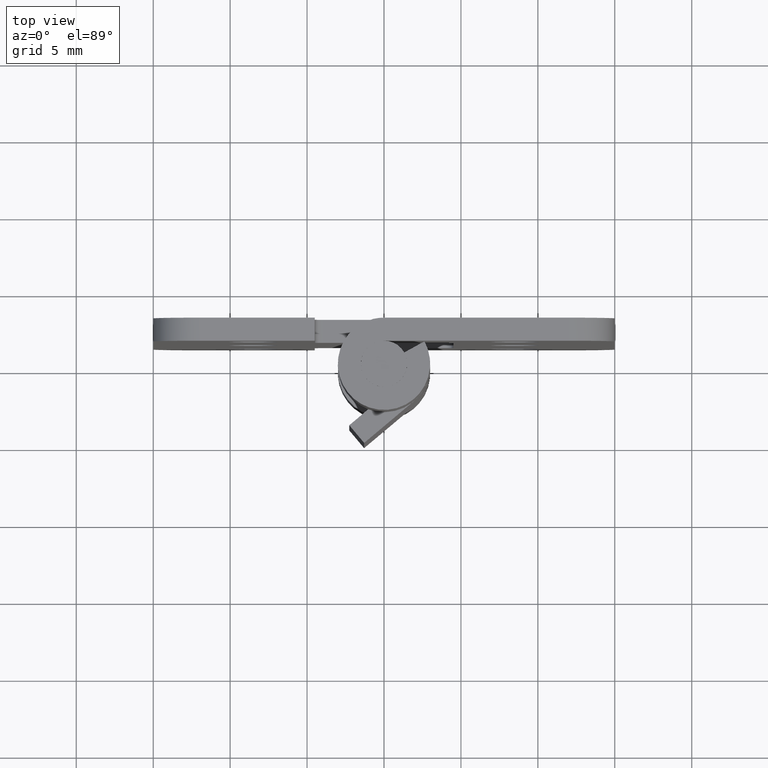
[diagram: clean part render]
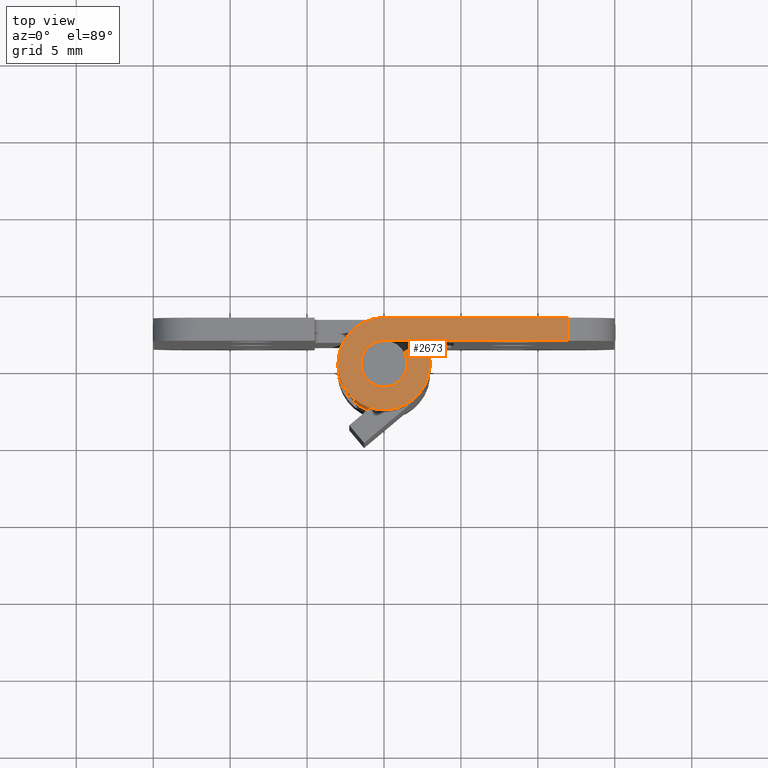
[diagram: same view with one face highlighted and labeled with its STEP entity id]
A machine part, top view. The second image highlights one B-rep face of the part: STEP entity #2673.
In plain terms, the highlighted face is a freeform B-spline surface patch.
Its self-contained STEP definition (entity closure, byte-faithful):
#2266=CARTESIAN_POINT('',(12.000006999999901,3.0,35.999993000000003));
#2267=VERTEX_POINT('',#2266);
#2283=CARTESIAN_POINT('',(12.000006999999901,1.500000000000000,35.999993000000003));
#2284=VERTEX_POINT('',#2283);
#2285=CARTESIAN_POINT('',(12.000006999999901,1.500000000000000,35.999993000000003));
#2286=CARTESIAN_POINT('',(12.000006999999901,3.0,35.999993000000003));
#2287=QUASI_UNIFORM_CURVE('',1,(#2285,#2286),.UNSPECIFIED.,.F.,.U.);
#2288=EDGE_CURVE('',#2284,#2267,#2287,.T.);
#2604=CARTESIAN_POINT('',(-3.749198550784993,-3.299492218642588,35.999993000000003));
#2605=CARTESIAN_POINT('',(12.749254136105570,-3.299492218642588,35.999993000000003));
#2606=CARTESIAN_POINT('',(-3.749198550784993,3.299690264924963,35.999993000000003));
#2607=CARTESIAN_POINT('',(12.749254136105570,3.299690264924963,35.999993000000003));
#2608=B_SPLINE_SURFACE_WITH_KNOTS('',1,1,((#2604,#2606),(#2605,#2607)),.UNSPECIFIED.,.F.,.F.,.U.,(2,2),(2,2),(0.0,16.498452686890559),(0.0,6.599182483567550),.UNSPECIFIED.);
#2609=CARTESIAN_POINT('',(0.0,1.500000000000000,35.999993000000003));
#2610=VERTEX_POINT('',#2609);
#2611=CARTESIAN_POINT('',(12.000006999999901,1.500000000000000,35.999993000000003));
#2612=CARTESIAN_POINT('',(0.0,1.500000000000000,35.999993000000003));
#2613=QUASI_UNIFORM_CURVE('',1,(#2611,#2612),.UNSPECIFIED.,.F.,.U.);
#2614=EDGE_CURVE('',#2284,#2610,#2613,.T.);
#2615=ORIENTED_EDGE('',*,*,#2614,.F.);
#2616=ORIENTED_EDGE('',*,*,#2288,.T.);
#2617=CARTESIAN_POINT('',(0.0,3.0,35.999993000000003));
#2618=VERTEX_POINT('',#2617);
#2619=CARTESIAN_POINT('',(0.0,3.0,35.999993000000003));
#2620=CARTESIAN_POINT('',(12.000006999999901,3.0,35.999993000000003));
#2621=QUASI_UNIFORM_CURVE('',1,(#2619,#2620),.UNSPECIFIED.,.F.,.U.);
#2622=EDGE_CURVE('',#2618,#2267,#2621,.T.);
#2623=ORIENTED_EDGE('',*,*,#2622,.F.);
#2624=CARTESIAN_POINT('',(2.626309197333780,1.450000000000000,35.999993000000003));
#2625=VERTEX_POINT('',#2624);
#2626=CARTESIAN_POINT('',(2.626309197333780,1.450000000000000,35.999993000000003));
#2627=CARTESIAN_POINT('',(3.733431584505770,-0.555272902071675,35.999993000000003));
#2628=CARTESIAN_POINT('',(2.090650590886091,-2.151552952364324,35.999993000000003));
#2629=CARTESIAN_POINT('',(0.447869597266413,-3.747833002656972,35.999993000000003));
#2630=CARTESIAN_POINT('',(-1.524795068197689,-2.583602136552764,35.999993000000003));
#2631=CARTESIAN_POINT('',(-3.497459733661792,-1.419371270448555,35.999993000000003));
#2632=CARTESIAN_POINT('',(-2.894028888043301,0.790314364775722,35.999993000000003));
#2633=CARTESIAN_POINT('',(-2.290598042424809,3.000000000000000,35.999993000000003));
#2634=CARTESIAN_POINT('',(0.0,3.0,35.999993000000003));
#2642=(BOUNDED_CURVE()B_SPLINE_CURVE(2,(#2626,#2627,#2628,#2629,#2630,#2631,#2632,#2633,#2634),.UNSPECIFIED.,.F.,.U.)B_SPLINE_CURVE_WITH_KNOTS((3,2,2,2,3),(0.0,0.250000000000000,0.500000000000000,0.750000000000000,1.0),.UNSPECIFIED.)CURVE()GEOMETRIC_REPRESENTATION_ITEM()RATIONAL_B_SPLINE_CURVE((1.0,0.794807562115481,1.0,0.794807562115481,1.0,0.794807562115481,1.0,0.794807562115481,1.0))REPRESENTATION_ITEM(''));
#2643=EDGE_CURVE('',#2625,#2618,#2642,.T.);
#2644=ORIENTED_EDGE('',*,*,#2643,.F.);
#2645=CARTESIAN_POINT('',(1.313154598666890,0.725000000000000,35.999993000000003));
#2646=VERTEX_POINT('',#2645);
#2647=CARTESIAN_POINT('',(1.313154598666890,0.725000000000000,35.999993000000003));
#2648=CARTESIAN_POINT('',(2.626309197333780,1.450000000000000,35.999993000000003));
#2649=QUASI_UNIFORM_CURVE('',1,(#2647,#2648),.UNSPECIFIED.,.F.,.U.);
#2650=EDGE_CURVE('',#2646,#2625,#2649,.T.);
#2651=ORIENTED_EDGE('',*,*,#2650,.F.);
#2652=CARTESIAN_POINT('',(1.313154598666890,0.725000000000000,35.999993000000003));
#2653=CARTESIAN_POINT('',(1.866715792252885,-0.277636451035838,35.999993000000003));
#2654=CARTESIAN_POINT('',(1.045325295443045,-1.075776476182162,35.999993000000003));
#2655=CARTESIAN_POINT('',(0.223934798633207,-1.873916501328486,35.999993000000003));
#2656=CARTESIAN_POINT('',(-0.762397534098844,-1.291801068276382,35.999993000000003));
#2657=CARTESIAN_POINT('',(-1.748729866830896,-0.709685635224277,35.999993000000003));
#2658=CARTESIAN_POINT('',(-1.447014444021651,0.395157182387861,35.999993000000003));
#2659=CARTESIAN_POINT('',(-1.145299021212405,1.500000000000000,35.999993000000003));
#2660=CARTESIAN_POINT('',(0.0,1.500000000000000,35.999993000000003));
#2668=(BOUNDED_CURVE()B_SPLINE_CURVE(2,(#2652,#2653,#2654,#2655,#2656,#2657,#2658,#2659,#2660),.UNSPECIFIED.,.F.,.U.)B_SPLINE_CURVE_WITH_KNOTS((3,2,2,2,3),(0.0,0.250000000000000,0.500000000000000,0.750000000000000,1.0),.UNSPECIFIED.)CURVE()GEOMETRIC_REPRESENTATION_ITEM()RATIONAL_B_SPLINE_CURVE((1.0,0.794807562115481,1.0,0.794807562115481,1.0,0.794807562115481,1.0,0.794807562115481,1.0))REPRESENTATION_ITEM(''));
#2669=EDGE_CURVE('',#2646,#2610,#2668,.T.);
#2670=ORIENTED_EDGE('',*,*,#2669,.T.);
#2671=EDGE_LOOP('',(#2615,#2616,#2623,#2644,#2651,#2670));
#2672=FACE_OUTER_BOUND('',#2671,.T.);
#2673=ADVANCED_FACE('',(#2672),#2608,.T.);